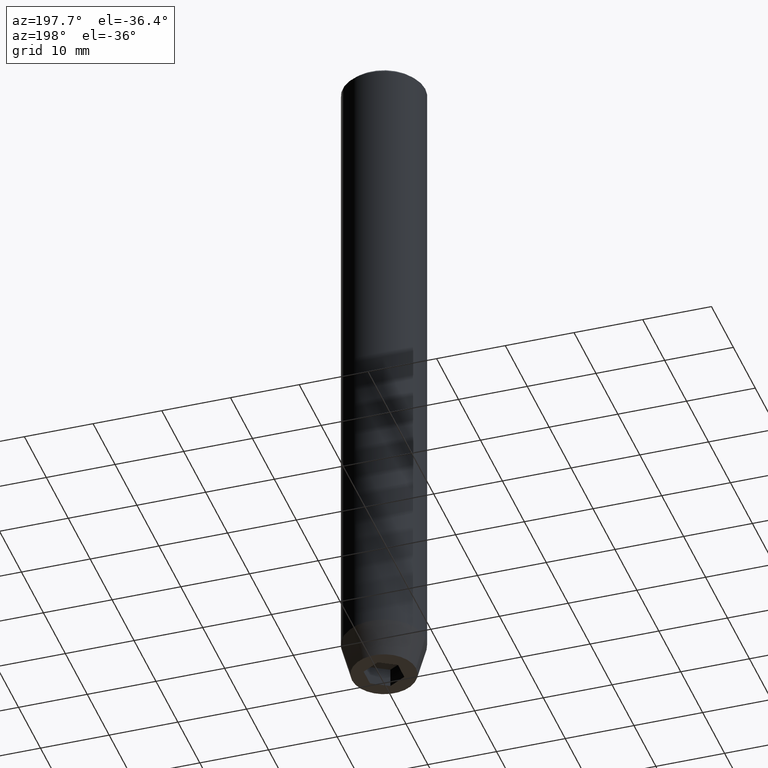
[diagram: clean part render]
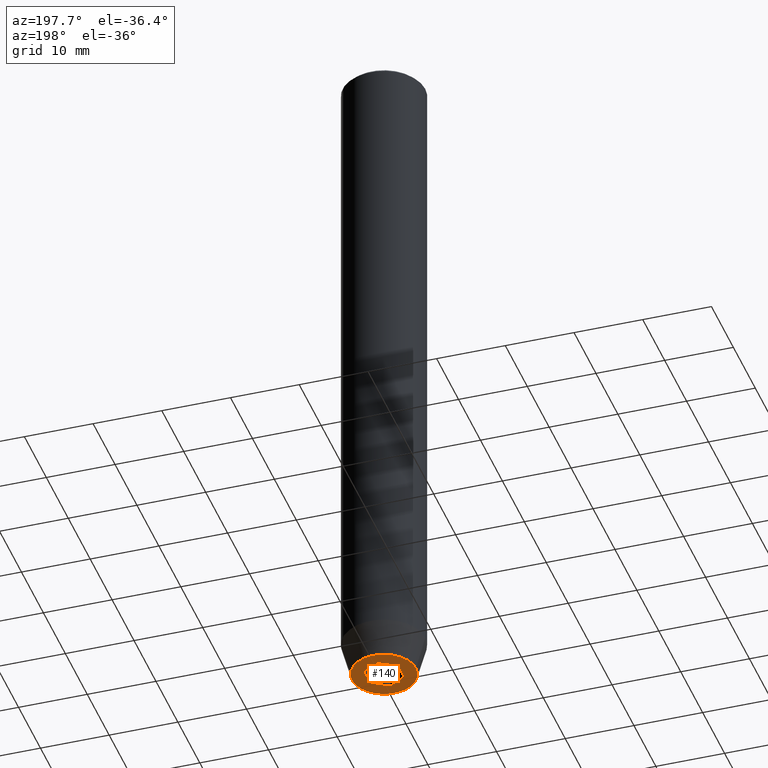
[diagram: same view with one face highlighted and labeled with its STEP entity id]
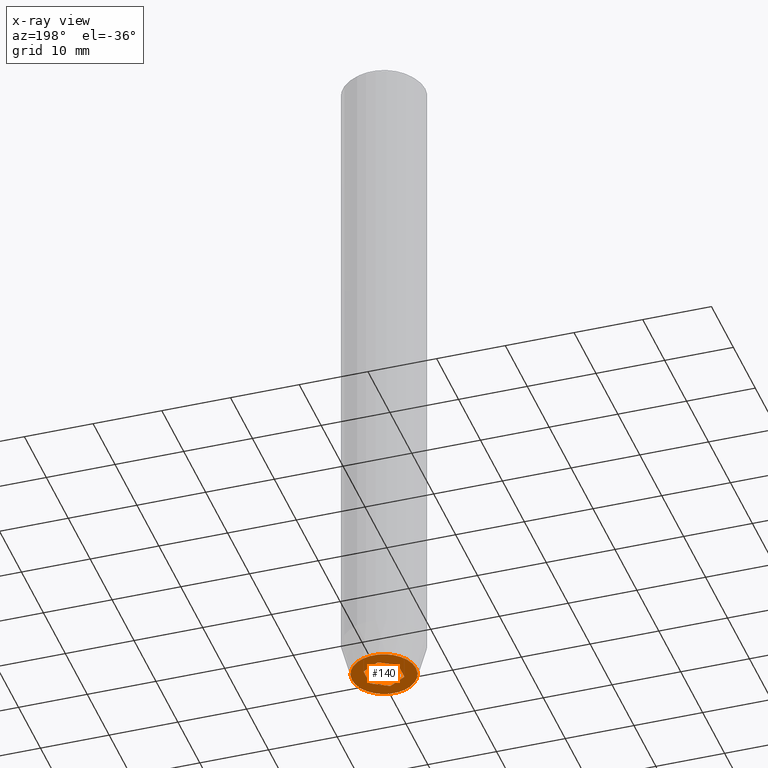
[diagram: x-ray of the same camera — body ghosted, the highlighted face saturated]
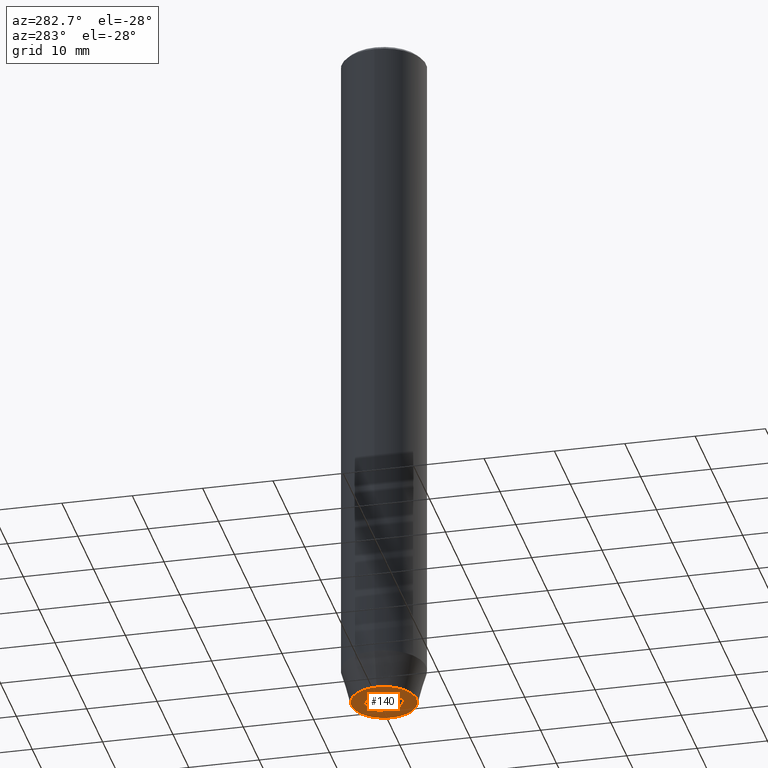
[diagram: same view with one face highlighted and labeled with its STEP entity id]
A machine part, auxiliary view. The second image highlights one B-rep face of the part: STEP entity #140.
The next image is the same camera in x-ray: the body ghosted, the highlighted face saturated — about 0% of this face is hidden behind the body in this view.
A second angle (auxiliary view) of the same face is appended — the face is thin or edge-on in the first view.
In plain terms, the highlighted planar face has unit normal (0, 0, -1).
Its self-contained STEP definition (entity closure, byte-faithful):
#4 = ORIENTED_EDGE ( 'NONE', *, *, #455, .F. ) ;
#5 = VECTOR ( 'NONE', #544, 1000.000000000000000 ) ;
#10 = CARTESIAN_POINT ( 'NONE',  ( -2.500000000000000444, 1.443375672974064772, -100.0000000000000000 ) ) ;
#11 = EDGE_CURVE ( 'NONE', #338, #332, #439, .T. ) ;
#26 = VECTOR ( 'NONE', #363, 1000.000000000000000 ) ;
#30 = DIRECTION ( 'NONE',  ( 0.000000000000000000, 0.000000000000000000, -1.000000000000000000 ) ) ;
#36 = CARTESIAN_POINT ( 'NONE',  ( -1.250000000000000444, 2.165063509461097269, -100.0000000000000000 ) ) ;
#39 = DIRECTION ( 'NONE',  ( -0.8660254037844387076, -0.5000000000000001110, 0.000000000000000000 ) ) ;
#60 = LINE ( 'NONE', #416, #5 ) ;
#61 = ORIENTED_EDGE ( 'NONE', *, *, #11, .F. ) ;
#72 = CARTESIAN_POINT ( 'NONE',  ( 0.000000000000000000, 0.000000000000000000, -100.0000000000000000 ) ) ;
#75 = CARTESIAN_POINT ( 'NONE',  ( 2.500000000000000000, 1.443375672974064328, -100.0000000000000000 ) ) ;
#78 = DIRECTION ( 'NONE',  ( -1.000000000000000000, 0.000000000000000000, -0.000000000000000000 ) ) ;
#103 = CARTESIAN_POINT ( 'NONE',  ( 0.000000000000000000, -2.886751345948128211, -100.0000000000000000 ) ) ;
#105 = EDGE_CURVE ( 'NONE', #332, #201, #255, .T. ) ;
#132 = EDGE_CURVE ( 'NONE', #443, #321, #296, .T. ) ;
#137 = CARTESIAN_POINT ( 'NONE',  ( 2.500000000000000000, -1.443375672974064106, -100.0000000000000000 ) ) ;
#139 = LINE ( 'NONE', #546, #26 ) ;
#140 = ADVANCED_FACE ( 'NONE', ( #350, #157 ), #478, .T. ) ;
#147 = CARTESIAN_POINT ( 'NONE',  ( -4.660254037844381081, 6.527522992771884330E-16, -100.0000000000000000 ) ) ;
#155 = ORIENTED_EDGE ( 'NONE', *, *, #583, .F. ) ;
#157 = FACE_OUTER_BOUND ( 'NONE', #196, .T. ) ;
#196 = EDGE_LOOP ( 'NONE', ( #155, #362 ) ) ;
#201 = VERTEX_POINT ( 'NONE', #75 ) ;
#214 = DIRECTION ( 'NONE',  ( -0.000000000000000000, -0.000000000000000000, 1.000000000000000000 ) ) ;
#215 = CARTESIAN_POINT ( 'NONE',  ( 1.250000000000000222, 2.165063509461096825, -100.0000000000000000 ) ) ;
#216 = EDGE_CURVE ( 'NONE', #456, #443, #581, .T. ) ;
#240 = EDGE_CURVE ( 'NONE', #415, #383, #271, .T. ) ;
#251 = VECTOR ( 'NONE', #39, 999.9999999999998863 ) ;
#255 = LINE ( 'NONE', #215, #266 ) ;
#263 = CARTESIAN_POINT ( 'NONE',  ( -2.500000000000000444, -1.443375672974064328, -100.0000000000000000 ) ) ;
#266 = VECTOR ( 'NONE', #450, 1000.000000000000000 ) ;
#271 = CIRCLE ( 'NONE', #347, 4.660254037844381081 ) ;
#290 = ORIENTED_EDGE ( 'NONE', *, *, #105, .F. ) ;
#296 = LINE ( 'NONE', #520, #460 ) ;
#317 = DIRECTION ( 'NONE',  ( -0.000000000000000000, -0.000000000000000000, 1.000000000000000000 ) ) ;
#321 = VERTEX_POINT ( 'NONE', #263 ) ;
#332 = VERTEX_POINT ( 'NONE', #420 ) ;
#335 = AXIS2_PLACEMENT_3D ( 'NONE', #569, #30, #78 ) ;
#338 = VERTEX_POINT ( 'NONE', #10 ) ;
#347 = AXIS2_PLACEMENT_3D ( 'NONE', #491, #317, #500 ) ;
#350 = FACE_BOUND ( 'NONE', #543, .T. ) ;
#362 = ORIENTED_EDGE ( 'NONE', *, *, #240, .F. ) ;
#363 = DIRECTION ( 'NONE',  ( 0.000000000000000000, -1.000000000000000000, 0.000000000000000000 ) ) ;
#383 = VERTEX_POINT ( 'NONE', #510 ) ;
#396 = DIRECTION ( 'NONE',  ( 0.8660254037844385966, 0.5000000000000001110, 0.000000000000000000 ) ) ;
#415 = VERTEX_POINT ( 'NONE', #147 ) ;
#416 = CARTESIAN_POINT ( 'NONE',  ( -2.500000000000000444, 0.000000000000000000, -100.0000000000000000 ) ) ;
#420 = CARTESIAN_POINT ( 'NONE',  ( -2.168404344971008868E-16, 2.886751345948129543, -100.0000000000000000 ) ) ;
#439 = LINE ( 'NONE', #36, #480 ) ;
#441 = EDGE_CURVE ( 'NONE', #201, #456, #139, .T. ) ;
#443 = VERTEX_POINT ( 'NONE', #103 ) ;
#450 = DIRECTION ( 'NONE',  ( 0.8660254037844385966, -0.5000000000000001110, 0.000000000000000000 ) ) ;
#455 = EDGE_CURVE ( 'NONE', #321, #338, #60, .T. ) ;
#456 = VERTEX_POINT ( 'NONE', #137 ) ;
#460 = VECTOR ( 'NONE', #483, 1000.000000000000114 ) ;
#476 = ORIENTED_EDGE ( 'NONE', *, *, #441, .F. ) ;
#478 = PLANE ( 'NONE',  #335 ) ;
#480 = VECTOR ( 'NONE', #396, 1000.000000000000000 ) ;
#483 = DIRECTION ( 'NONE',  ( -0.8660254037844387076, 0.4999999999999998890, 0.000000000000000000 ) ) ;
#491 = CARTESIAN_POINT ( 'NONE',  ( 0.000000000000000000, 0.000000000000000000, -100.0000000000000000 ) ) ;
#500 = DIRECTION ( 'NONE',  ( 1.000000000000000000, 0.000000000000000000, 0.000000000000000000 ) ) ;
#502 = ORIENTED_EDGE ( 'NONE', *, *, #216, .F. ) ;
#505 = ORIENTED_EDGE ( 'NONE', *, *, #132, .F. ) ;
#510 = CARTESIAN_POINT ( 'NONE',  ( 4.660254037844381081, 0.000000000000000000, -100.0000000000000000 ) ) ;
#520 = CARTESIAN_POINT ( 'NONE',  ( -1.249999999999999556, -2.165063509461096825, -100.0000000000000000 ) ) ;
#541 = CARTESIAN_POINT ( 'NONE',  ( 1.249999999999999778, -2.165063509461096380, -100.0000000000000000 ) ) ;
#543 = EDGE_LOOP ( 'NONE', ( #61, #4, #505, #502, #476, #290 ) ) ;
#544 = DIRECTION ( 'NONE',  ( 0.000000000000000000, 1.000000000000000000, 0.000000000000000000 ) ) ;
#546 = CARTESIAN_POINT ( 'NONE',  ( 2.500000000000000000, 0.000000000000000000, -100.0000000000000000 ) ) ;
#551 = AXIS2_PLACEMENT_3D ( 'NONE', #72, #214, #556 ) ;
#556 = DIRECTION ( 'NONE',  ( 1.000000000000000000, 0.000000000000000000, 0.000000000000000000 ) ) ;
#561 = CIRCLE ( 'NONE', #551, 4.660254037844381081 ) ;
#569 = CARTESIAN_POINT ( 'NONE',  ( 0.000000000000000000, 4.660254037844381081, -100.0000000000000000 ) ) ;
#581 = LINE ( 'NONE', #541, #251 ) ;
#583 = EDGE_CURVE ( 'NONE', #383, #415, #561, .T. ) ;